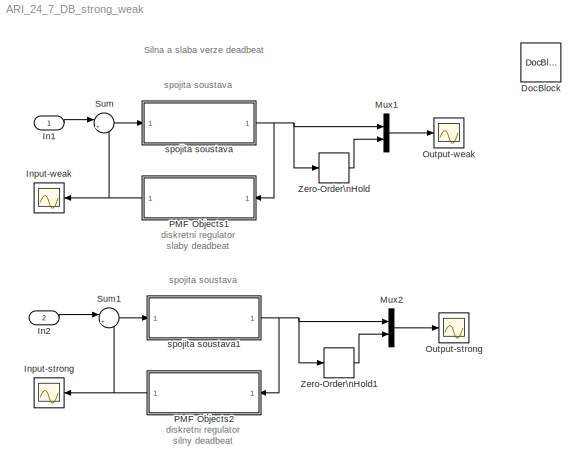
MODEL ARI_24_7_DB_strong_weak
KIND model
BLOCK [Reference] DocBlock  REF=simulink/Model-Wide\nUtilities/DocBlock
  DocumentType = Text
  Ports = []
  SID = 27
  SourceBlock = simulink/Model-Wide\nUtilities/DocBlock
  SourceType = DocBlock
  UserData = DataTag0
  UserDataPersistent = on
BLOCK [Inport] In1
  IconDisplay = Port number
  SID = 29
BLOCK [Inport] In2
  IconDisplay = Port number
  Port = 2
  SID = 30
BLOCK [Scope] Input-strong
  DataFormat = Array
  Floating = off
  NumInputPorts = 1
  Ports = [1]
  SID = 28
  SampleTime = 0
  SaveName = ScopeData1
  TickLabels = on
  TimeRange = 2
  YMax = 2000
  YMin = -2000
  ZoomMode = xonly
BLOCK [Scope] Input-weak
  DataFormat = Array
  Floating = off
  NumInputPorts = 1
  Ports = [1]
  SID = 2
  SampleTime = 0
  TickLabels = on
  TimeRange = 2
  YMax = 2000
  YMin = -2000
  ZoomMode = xonly
BLOCK [Mux] Mux1
  DisplayOption = bar
  Inputs = 2
  Ports = [2, 1]
  SID = 3
BLOCK [Mux] Mux2
  DisplayOption = bar
  Inputs = 2
  Ports = [2, 1]
  SID = 4
BLOCK [Scope] Output-strong
  DataFormat = Array
  Floating = off
  NumInputPorts = 1
  Ports = [1]
  SID = 5
  SampleTime = 0
  SaveName = ScopeData2
  TickLabels = on
  TimeRange = 2
  YMax = 3
  YMin = -3
  ZoomMode = xonly
BLOCK [Scope] Output-weak
  DataFormat = Array
  Floating = off
  NumInputPorts = 1
  Ports = [1]
  SID = 6
  SampleTime = 0
  TickLabels = on
  TimeRange = 2
  YMax = 3
  YMin = -3
  ZoomMode = xonly
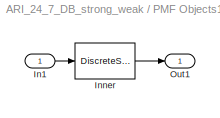
BLOCK [SubSystem] PMF Objects1
  FunctionWithSeparateData = off
  MaskCallbackString = |||
  MaskDescription = Polynomial matrix fraction description of a linear system.\n\nThis block represents a linear system defined by the polynomial matrix fraction of its transfer function.
  MaskDisplay = disp(Label);\n
  MaskEnableString = on,on,on,on
  MaskHelp = This block represents a linear system [<I>A,B,C,D</I>] defined by the polynomial matrix fraction (<I>PMF</I>) of its transfer function <I>T</I>.  \n<p>\n<b>Left Matrix Fraction</b> item of the popup menu <b>Type</b> indicates the transfer function in the form of <I>left PMF</I>:  \n<p>\n<I>T</I> = inv(<I>Q</I>) <I>P</I>.\n<p> \n<b>Right Matrix Fraction</b> item is used if the transfer function is ...<+1109ch>  <repeated x4 — deduplicated; at blocks: PMF Objects1, PMF Objects2, spojita soustava, spojita soustava1>
  MaskHideContents = off
  MaskIconFrame = on
  MaskIconOpaque = on
  MaskIconRotate = none
  MaskIconUnits = autoscale
  MaskInitialization = Label = 'xxx';\n[A,B,C,D,Label,var] = polymask2(F, fvar, length(InCon));\nupdate;\n
  MaskPortRotate = default
  MaskPromptString = PMF Object:|Initial states:|Sample time (discrete time only):|Force variable:
  MaskStyleString = edit,edit,edit,popup(No change|s   (continous time)|p   (continous time)|z      (discrete time)|q      (discrete time)|d      (discrete time)|z^-1 (discrete time))
  MaskToolTipString = on,on,on,on
  MaskTunableValueString = on,on,on,on
  MaskType = PMF Block
  MaskValueString = q_weak/p_weak|[ ]|h|No change
  MaskVariables = F=&1;InCon=@2;SampTime=@3;fvar=@4;
  MaskVisibilityString = on,on,on,on
  MinAlgLoopOccurrences = off
  Opaque = off
  Ports = [1, 1]
  PropExecContextOutsideSubsystem = off
  RTWSystemCode = Auto
  RequestExecContextInheritance = off
  SID = 7
BLOCK [Inport] PMF Objects1/In1
  IconDisplay = Port number
  SID = 8
BLOCK [DiscreteStateSpace] PMF Objects1/Inner
  A = A
  B = B
  C = C
  D = D
  SID = 9
  SampleTime = SampTime
  X0 = InCon
BLOCK [Outport] PMF Objects1/Out1
  IconDisplay = Port number
  SID = 10
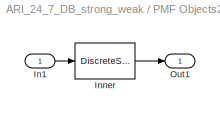
BLOCK [SubSystem] PMF Objects2
  FunctionWithSeparateData = off
  MaskCallbackString = |||
  MaskDescription = Polynomial matrix fraction description of a linear system.\n\nThis block represents a linear system defined by the polynomial matrix fraction of its transfer function.
  MaskDisplay = disp(Label);\n
  MaskEnableString = on,on,on,on
  MaskHideContents = off
  MaskIconFrame = on
  MaskIconOpaque = on
  MaskIconRotate = none
  MaskIconUnits = autoscale
  MaskInitialization = Label = 'xxx';\n[A,B,C,D,Label,var] = polymask2(F, fvar, length(InCon));\nupdate;\n
  MaskPortRotate = default
  MaskPromptString = PMF Object:|Initial states:|Sample time (discrete time only):|Force variable:
  MaskStyleString = edit,edit,edit,popup(No change|s   (continous time)|p   (continous time)|z      (discrete time)|q      (discrete time)|d      (discrete time)|z^-1 (discrete time))
  MaskToolTipString = on,on,on,on
  MaskTunableValueString = on,on,on,on
  MaskType = PMF Block
  MaskValueString = q_strong/p_strong|[ ]|h|No change
  MaskVariables = F=&1;InCon=@2;SampTime=@3;fvar=@4;
  MaskVisibilityString = on,on,on,on
  MinAlgLoopOccurrences = off
  Opaque = off
  Ports = [1, 1]
  PropExecContextOutsideSubsystem = off
  RTWSystemCode = Auto
  RequestExecContextInheritance = off
  SID = 11
BLOCK [Inport] PMF Objects2/In1
  IconDisplay = Port number
  SID = 12
BLOCK [DiscreteStateSpace] PMF Objects2/Inner
  A = A
  B = B
  C = C
  D = D
  SID = 13
  SampleTime = SampTime
  X0 = InCon
BLOCK [Outport] PMF Objects2/Out1
  IconDisplay = Port number
  SID = 14
BLOCK [Sum] Sum
  IconShape = round
  InputSameDT = off
  Inputs = |+-
  OutDataTypeStr = Inherit: Inherit via internal rule
  Ports = [2, 1]
  SID = 15
  SaturateOnIntegerOverflow = off
BLOCK [Sum] Sum1
  IconShape = round
  InputSameDT = off
  Inputs = |+-
  OutDataTypeStr = Inherit: Inherit via internal rule
  Ports = [2, 1]
  SID = 16
  SaturateOnIntegerOverflow = off
BLOCK [ZeroOrderHold] Zero-Order\nHold
  SID = 17
  SampleTime = h
BLOCK [ZeroOrderHold] Zero-Order\nHold1
  SID = 18
  SampleTime = h
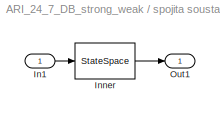
BLOCK [SubSystem] spojita soustava
  FunctionWithSeparateData = off
  MaskCallbackString = |||
  MaskDescription = Polynomial matrix fraction description of a linear system.\n\nThis block represents a linear system defined by the polynomial matrix fraction of its transfer function.
  MaskDisplay = disp(Label);\n
  MaskEnableString = on,on,on,on
  MaskHideContents = off
  MaskIconFrame = on
  MaskIconOpaque = on
  MaskIconRotate = none
  MaskIconUnits = autoscale
  MaskInitialization = Label = 'xxx';\n[A,B,C,D,Label,var] = polymask2(F, fvar, length(InCon));\nupdate;\n
  MaskPortRotate = default
  MaskPromptString = PMF Object:|Initial states:|Sample time (discrete time only):|Force variable:
  MaskStyleString = edit,edit,edit,popup(No change|s   (continous time)|p   (continous time)|z      (discrete time)|q      (discrete time)|d      (discrete time)|z^-1 (discrete time))
  MaskToolTipString = on,on,on,on
  MaskTunableValueString = on,on,on,on
  MaskType = PMF Block
  MaskValueString = b/a|[1 1 1 ]|1|No change
  MaskVariables = F=&1;InCon=@2;SampTime=@3;fvar=@4;
  MaskVisibilityString = on,on,on,on
  MinAlgLoopOccurrences = off
  Opaque = off
  Ports = [1, 1]
  PropExecContextOutsideSubsystem = off
  RTWSystemCode = Auto
  RequestExecContextInheritance = off
  SID = 19
BLOCK [Inport] spojita soustava/In1
  IconDisplay = Port number
  SID = 20
BLOCK [StateSpace] spojita soustava/Inner
  A = A
  B = B
  C = C
  D = D
  SID = 21
  X0 = InCon
BLOCK [Outport] spojita soustava/Out1
  IconDisplay = Port number
  SID = 22
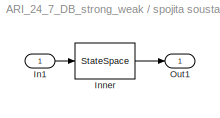
BLOCK [SubSystem] spojita soustava1
  FunctionWithSeparateData = off
  MaskCallbackString = |||
  MaskDescription = Polynomial matrix fraction description of a linear system.\n\nThis block represents a linear system defined by the polynomial matrix fraction of its transfer function.
  MaskDisplay = disp(Label);\n
  MaskEnableString = on,on,on,on
  MaskHideContents = off
  MaskIconFrame = on
  MaskIconOpaque = on
  MaskIconRotate = none
  MaskIconUnits = autoscale
  MaskInitialization = Label = 'xxx';\n[A,B,C,D,Label,var] = polymask2(F, fvar, length(InCon));\nupdate;\n
  MaskPortRotate = default
  MaskPromptString = PMF Object:|Initial states:|Sample time (discrete time only):|Force variable:
  MaskStyleString = edit,edit,edit,popup(No change|s   (continous time)|p   (continous time)|z      (discrete time)|q      (discrete time)|d      (discrete time)|z^-1 (discrete time))
  MaskToolTipString = on,on,on,on
  MaskTunableValueString = on,on,on,on
  MaskType = PMF Block
  MaskValueString = b/a|[1 1 1 ]|1|No change
  MaskVariables = F=&1;InCon=@2;SampTime=@3;fvar=@4;
  MaskVisibilityString = on,on,on,on
  MinAlgLoopOccurrences = off
  Opaque = off
  Ports = [1, 1]
  PropExecContextOutsideSubsystem = off
  RTWSystemCode = Auto
  RequestExecContextInheritance = off
  SID = 23
BLOCK [Inport] spojita soustava1/In1
  IconDisplay = Port number
  SID = 24
BLOCK [StateSpace] spojita soustava1/Inner
  A = A
  B = B
  C = C
  D = D
  SID = 25
  X0 = InCon
BLOCK [Outport] spojita soustava1/Out1
  IconDisplay = Port number
  SID = 26
ANNOTATION (root): Silna a slaba verze deadbeat
ANNOTATION (root): diskretni regulator\nsilny deadbeat
ANNOTATION (root): diskretni regulator\nslaby deadbeat
ANNOTATION (root): spojita soustava
LINE In1:1 -> Sum:1
LINE In2:1 -> Sum1:1
LINE Mux1:1 -> Output-weak:1
LINE Mux2:1 -> Output-strong:1
LINE PMF Objects1/In1:1 -> PMF Objects1/Inner:1
LINE PMF Objects1/Inner:1 -> PMF Objects1/Out1:1
NET PMF Objects1:1 -> Input-weak:1, Sum:2
LINE PMF Objects2/In1:1 -> PMF Objects2/Inner:1
LINE PMF Objects2/Inner:1 -> PMF Objects2/Out1:1
NET PMF Objects2:1 -> Input-strong:1, Sum1:2
LINE Sum1:1 -> spojita soustava1:1
LINE Sum:1 -> spojita soustava:1
LINE Zero-Order\nHold1:1 -> Mux2:2
LINE Zero-Order\nHold:1 -> Mux1:2
LINE spojita soustava/In1:1 -> spojita soustava/Inner:1
LINE spojita soustava/Inner:1 -> spojita soustava/Out1:1
LINE spojita soustava1/In1:1 -> spojita soustava1/Inner:1
LINE spojita soustava1/Inner:1 -> spojita soustava1/Out1:1
NET spojita soustava1:1 -> Mux2:1, PMF Objects2:1, Zero-Order\nHold1:1
NET spojita soustava:1 -> Mux1:1, PMF Objects1:1, Zero-Order\nHold:1
note: NET lines group one-source signal fan-out (src -> all destinations, sorted); 1:1 wires keep LINE
